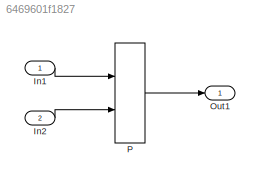
MODEL slx_6469601f1827
KIND model
CONFIG AbsTol = auto
CONFIG EnableMultiTasking = off
CONFIG FixedStep = auto
CONFIG MaxStep = auto
CONFIG MinStep = auto
CONFIG RelTol = 1e-3
CONFIG SampleTimeConstraint = Unconstrained
CONFIG Solver = FixedStepDiscrete
CONFIG SolverName = FixedStepDiscrete
CONFIG StartTime = 0.0
CONFIG StopTime = 10.0
BLOCK [Inport] In1
  BusOutputAsStruct = on
  IconDisplay = Port number
  OutDataTypeStr = Bus: kfBus
  OutMax = 3
  OutMin = 0
  PortDimensions = 1
BLOCK [Inport] In2
  IconDisplay = Port number
  Port = 2
  PortDimensions = 3
BLOCK [Outport] Out1
  IconDisplay = Port number
BLOCK [Interpolation_n-D] P
  InitFcn = elems(1) = Simulink.BusElement;\nelems(1).Name = 'Index';\nelems(1).DataType = 'int8';\nelems(2) = Simulink.BusElement;\nelems(2).Name = 'Fraction';\nelems(2).DataType = 'double';\nkfBus = Simulink.Bus;\nkfBus.Elements = elems;\nclear elems;\nassignin('base', 'kfBus', kfBus);
  InputPortMap = u0,p2
  IntermediateResultsDataTypeStr = double
  InternalRulePriority = Speed
  InterpMethod = Nearest
  NumberOfTableDimensions = 1
  OutDataTypeStr = int32
  Ports = [2, 1]
  RequireIndexFractionAsBus = on
  RndMeth = Convergent
  TableSource = Input port
LINE In1:1 -> P:1
LINE In2:1 -> P:2
LINE P:1 -> Out1:1
